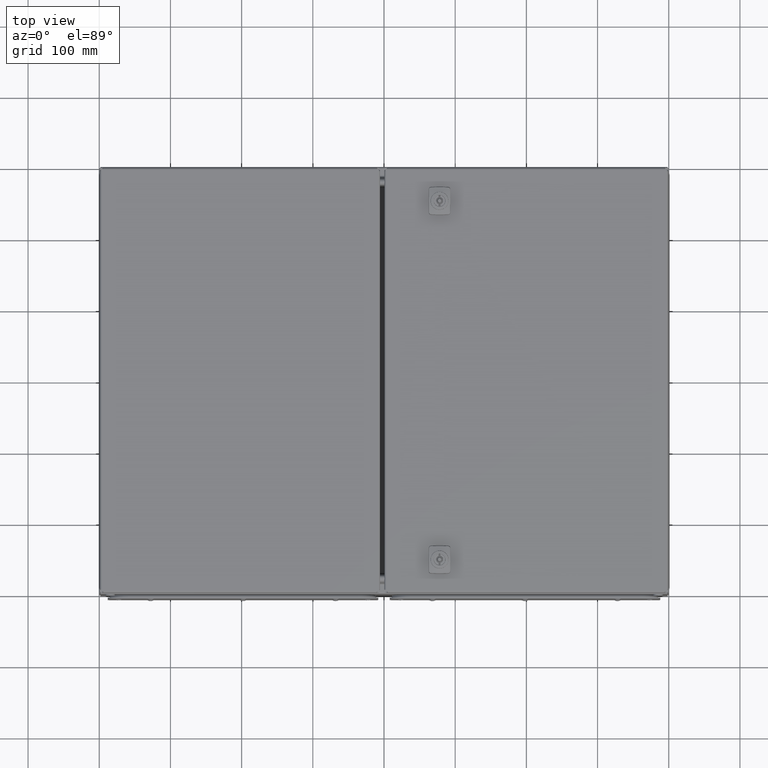
[diagram: clean part render]
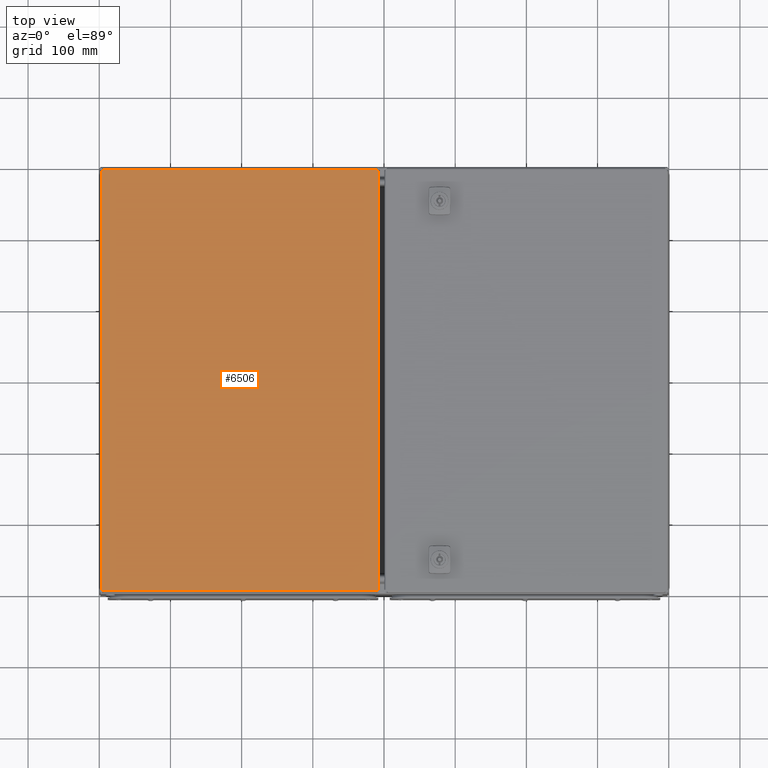
[diagram: same view with one face highlighted and labeled with its STEP entity id]
A machine part, top view. The second image highlights one B-rep face of the part: STEP entity #6506.
In plain terms, the highlighted planar face has unit normal (0, -0, -1).
Its self-contained STEP definition (entity closure, byte-faithful):
#1870 = DIRECTION ( 'NONE',  ( 0.0000000000000000000, -1.000000000000000000, 0.0000000000000000000 ) ) ;
#1961 = CARTESIAN_POINT ( 'NONE',  ( 182.7499999999999700, -310.5000000000000000, 0.0000000000000000000 ) ) ;
#4979 = VECTOR ( 'NONE', #1870, 1000.000000000000000 ) ;
#5187 = LINE ( 'NONE', #1961, #4979 ) ;
#5905 = EDGE_CURVE ( 'NONE', #27263, #30803, #5187, .T. ) ;
#6506 = ADVANCED_FACE ( 'NONE', ( #42756 ), #57035, .F. ) ;
#6905 = EDGE_CURVE ( 'NONE', #12999, #30803, #42552, .T. ) ;
#7041 = EDGE_CURVE ( 'NONE', #12995, #30729, #42971, .T. ) ;
#7857 = DIRECTION ( 'NONE',  ( -0.0000000000000000000, -0.0000000000000000000, -1.000000000000000000 ) ) ;
#8690 = DIRECTION ( 'NONE',  ( -1.000000000000000000, 0.0000000000000000000, 0.0000000000000000000 ) ) ;
#8781 = CARTESIAN_POINT ( 'NONE',  ( 184.2499999999999700, -297.0000000000000000, 0.0000000000000000000 ) ) ;
#12995 = VERTEX_POINT ( 'NONE', #59324 ) ;
#12999 = VERTEX_POINT ( 'NONE', #59706 ) ;
#13000 = VERTEX_POINT ( 'NONE', #59614 ) ;
#14430 = VECTOR ( 'NONE', #48023, 1000.000000000000000 ) ;
#14866 = VECTOR ( 'NONE', #47444, 1000.000000000000000 ) ;
#15279 = LINE ( 'NONE', #47443, #14866 ) ;
#15305 = LINE ( 'NONE', #48022, #14430 ) ;
#17989 = VERTEX_POINT ( 'NONE', #46968 ) ;
#18105 = VERTEX_POINT ( 'NONE', #46607 ) ;
#19584 = AXIS2_PLACEMENT_3D ( 'NONE', #57853, #58113, #57359 ) ;
#19605 = AXIS2_PLACEMENT_3D ( 'NONE', #8781, #7857, #8690 ) ;
#19664 = AXIS2_PLACEMENT_3D ( 'NONE', #27023, #26878, #26497 ) ;
#22516 = EDGE_LOOP ( 'NONE', ( #29669, #28917, #29332, #29798, #29821, #29362, #30146, #29287 ) ) ;
#26497 = DIRECTION ( 'NONE',  ( 1.000000000000000000, 0.0000000000000000000, 0.0000000000000000000 ) ) ;
#26878 = DIRECTION ( 'NONE',  ( 0.0000000000000000000, 0.0000000000000000000, 1.000000000000000000 ) ) ;
#27023 = CARTESIAN_POINT ( 'NONE',  ( -206.2500000000000900, 297.0000000000000000, 0.0000000000000000000 ) ) ;
#27263 = VERTEX_POINT ( 'NONE', #50777 ) ;
#27660 = AXIS2_PLACEMENT_3D ( 'NONE', #48709, #48736, #48737 ) ;
#28034 = AXIS2_PLACEMENT_3D ( 'NONE', #48641, #48638, #48637 ) ;
#28917 = ORIENTED_EDGE ( 'NONE', *, *, #5905, .T. ) ;
#29287 = ORIENTED_EDGE ( 'NONE', *, *, #57153, .T. ) ;
#29332 = ORIENTED_EDGE ( 'NONE', *, *, #6905, .F. ) ;
#29362 = ORIENTED_EDGE ( 'NONE', *, *, #56491, .F. ) ;
#29669 = ORIENTED_EDGE ( 'NONE', *, *, #56900, .T. ) ;
#29798 = ORIENTED_EDGE ( 'NONE', *, *, #56410, .F. ) ;
#29821 = ORIENTED_EDGE ( 'NONE', *, *, #56984, .F. ) ;
#30146 = ORIENTED_EDGE ( 'NONE', *, *, #7041, .T. ) ;
#30729 = VERTEX_POINT ( 'NONE', #50687 ) ;
#30803 = VERTEX_POINT ( 'NONE', #50693 ) ;
#37526 = LINE ( 'NONE', #49078, #37821 ) ;
#37710 = CIRCLE ( 'NONE', #28034, 3.000000000000002700 ) ;
#37821 = VECTOR ( 'NONE', #49077, 1000.000000000000000 ) ;
#37942 = CIRCLE ( 'NONE', #27660, 3.000000000000002700 ) ;
#42552 = CIRCLE ( 'NONE', #19605, 3.000000000000002700 ) ;
#42756 = FACE_OUTER_BOUND ( 'NONE', #22516, .T. ) ;
#42971 = CIRCLE ( 'NONE', #19664, 3.000000000000002700 ) ;
#46607 = CARTESIAN_POINT ( 'NONE',  ( -204.7500000000000600, -294.4019237886466800, 0.0000000000000000000 ) ) ;
#46968 = CARTESIAN_POINT ( 'NONE',  ( 181.6519237886467400, 295.4999999999998300, 0.0000000000000000000 ) ) ;
#47443 = CARTESIAN_POINT ( 'NONE',  ( -219.7500000000000000, -295.5000000000001700, 0.0000000000000000000 ) ) ;
#47444 = DIRECTION ( 'NONE',  ( 1.000000000000000000, 2.659216825449476500E-016, 0.0000000000000000000 ) ) ;
#48022 = CARTESIAN_POINT ( 'NONE',  ( -204.7500000000000600, -310.5000000000000000, 0.0000000000000000000 ) ) ;
#48023 = DIRECTION ( 'NONE',  ( 0.0000000000000000000, -1.000000000000000000, 0.0000000000000000000 ) ) ;
#48637 = DIRECTION ( 'NONE',  ( 1.000000000000000000, 0.0000000000000000000, 0.0000000000000000000 ) ) ;
#48638 = DIRECTION ( 'NONE',  ( 0.0000000000000000000, 0.0000000000000000000, 1.000000000000000000 ) ) ;
#48641 = CARTESIAN_POINT ( 'NONE',  ( 184.2499999999999700, 297.0000000000000000, 0.0000000000000000000 ) ) ;
#48709 = CARTESIAN_POINT ( 'NONE',  ( -206.2500000000000900, -297.0000000000000000, 0.0000000000000000000 ) ) ;
#48736 = DIRECTION ( 'NONE',  ( -0.0000000000000000000, -0.0000000000000000000, -1.000000000000000000 ) ) ;
#48737 = DIRECTION ( 'NONE',  ( 1.000000000000000000, 0.0000000000000000000, 0.0000000000000000000 ) ) ;
#49077 = DIRECTION ( 'NONE',  ( 1.000000000000000000, -1.329608412724738500E-016, 0.0000000000000000000 ) ) ;
#49078 = CARTESIAN_POINT ( 'NONE',  ( -219.7499999999999100, 295.4999999999998900, 0.0000000000000000000 ) ) ;
#50687 = CARTESIAN_POINT ( 'NONE',  ( -203.6519237886468300, 295.4999999999998900, 0.0000000000000000000 ) ) ;
#50693 = CARTESIAN_POINT ( 'NONE',  ( 182.7499999999999700, -294.4019237886466800, 0.0000000000000000000 ) ) ;
#50777 = CARTESIAN_POINT ( 'NONE',  ( 182.7499999999999700, 294.4019237886466800, 0.0000000000000000000 ) ) ;
#56410 = EDGE_CURVE ( 'NONE', #13000, #12999, #15279, .T. ) ;
#56491 = EDGE_CURVE ( 'NONE', #12995, #18105, #15305, .T. ) ;
#56900 = EDGE_CURVE ( 'NONE', #17989, #27263, #37710, .T. ) ;
#56984 = EDGE_CURVE ( 'NONE', #18105, #13000, #37942, .T. ) ;
#57035 = PLANE ( 'NONE',  #19584 ) ;
#57153 = EDGE_CURVE ( 'NONE', #30729, #17989, #37526, .T. ) ;
#57359 = DIRECTION ( 'NONE',  ( 1.000000000000000000, 0.0000000000000000000, 0.0000000000000000000 ) ) ;
#57853 = CARTESIAN_POINT ( 'NONE',  ( -219.7500000000000000, -310.5000000000000000, 0.0000000000000000000 ) ) ;
#58113 = DIRECTION ( 'NONE',  ( -0.0000000000000000000, 0.0000000000000000000, 1.000000000000000000 ) ) ;
#59324 = CARTESIAN_POINT ( 'NONE',  ( -204.7500000000000600, 294.4019237886466800, 0.0000000000000000000 ) ) ;
#59614 = CARTESIAN_POINT ( 'NONE',  ( -203.6519237886468800, -295.5000000000001700, 4.336808689942017700E-016 ) ) ;
#59706 = CARTESIAN_POINT ( 'NONE',  ( 181.6519237886466300, -295.5000000000000600, 0.0000000000000000000 ) ) ;